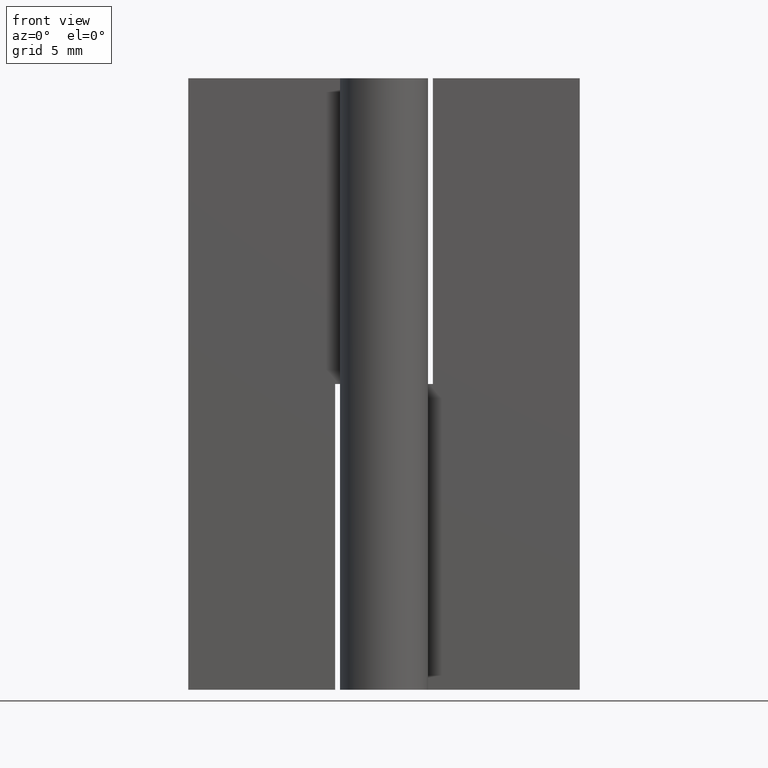
[diagram: clean part render]
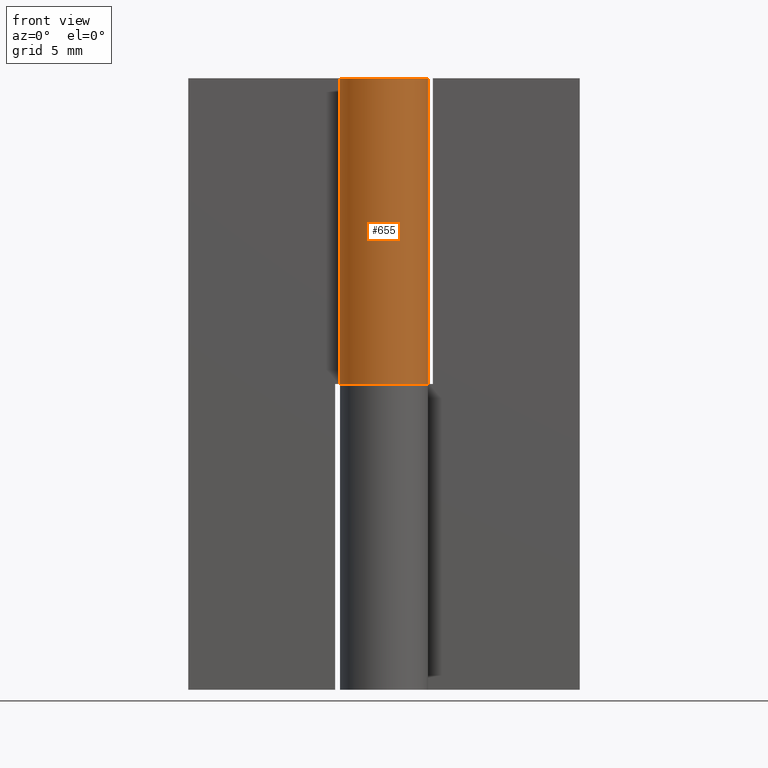
[diagram: same view with one face highlighted and labeled with its STEP entity id]
A machine part, front view. The second image highlights one B-rep face of the part: STEP entity #655.
In plain terms, the highlighted face is a freeform B-spline surface patch.
Its self-contained STEP definition (entity closure, byte-faithful):
#355=CARTESIAN_POINT('',(-3.026136150274800,1.950000000000000,25.0));
#356=VERTEX_POINT('',#355);
#357=CARTESIAN_POINT('',(0.0,3.599998000000000,25.0));
#358=VERTEX_POINT('',#357);
#359=CARTESIAN_POINT('',(-3.026136150274800,1.950000000000000,25.0));
#360=CARTESIAN_POINT('',(-4.541419292909124,-0.401512982956539,25.0));
#361=CARTESIAN_POINT('',(-2.637063597806918,-2.450691853562211,25.0));
#362=CARTESIAN_POINT('',(-0.732707902704714,-4.499870724167883,25.0));
#363=CARTESIAN_POINT('',(1.723368793961409,-3.160697125855822,25.0));
#364=CARTESIAN_POINT('',(4.179445490627529,-1.821523527543764,25.0));
#365=CARTESIAN_POINT('',(3.488445646206986,0.889236523647995,25.0));
#366=CARTESIAN_POINT('',(2.797445801786441,3.599996574839755,25.0));
#367=CARTESIAN_POINT('',(0.0,3.599998000000000,25.0));
#375=(BOUNDED_CURVE()B_SPLINE_CURVE(2,(#359,#360,#361,#362,#363,#364,#365,#366,#367),.UNSPECIFIED.,.F.,.U.)B_SPLINE_CURVE_WITH_KNOTS((3,2,2,2,3),(0.0,0.250000000000000,0.500000000000000,0.750000000000000,1.0),.UNSPECIFIED.)CURVE()GEOMETRIC_REPRESENTATION_ITEM()RATIONAL_B_SPLINE_CURVE((1.0,0.789623639943024,1.0,0.789623639943024,1.0,0.789623639943024,1.0,0.789623639943024,1.0))REPRESENTATION_ITEM(''));
#376=EDGE_CURVE('',#356,#358,#375,.T.);
#412=CARTESIAN_POINT('',(-0.003794732665986,3.599998000000000,25.0));
#413=VERTEX_POINT('',#412);
#419=CARTESIAN_POINT('',(0.0,3.599998000000000,25.0));
#420=CARTESIAN_POINT('',(-0.003794732665986,3.599998000000000,25.0));
#421=QUASI_UNIFORM_CURVE('',1,(#419,#420),.UNSPECIFIED.,.F.,.U.);
#422=EDGE_CURVE('',#358,#413,#421,.T.);
#434=CARTESIAN_POINT('',(-3.026136150274800,1.950000000000000,49.999992000000098));
#435=VERTEX_POINT('',#434);
#441=CARTESIAN_POINT('',(-0.003794732665986,3.599998000000000,49.999992000000098));
#442=VERTEX_POINT('',#441);
#443=CARTESIAN_POINT('',(-0.003794732665987,3.599997999999999,49.999992000000098));
#444=CARTESIAN_POINT('',(2.794410358292481,3.602947568378868,49.999992000000084));
#445=CARTESIAN_POINT('',(3.487741550519031,0.891997128237030,49.999992000000098));
#446=CARTESIAN_POINT('',(4.181072742745579,-1.818953311904811,49.999992000000084));
#447=CARTESIAN_POINT('',(1.725034387729875,-3.159787391763790,49.999992000000098));
#448=CARTESIAN_POINT('',(-0.731003967285830,-4.500621471622769,49.999992000000084));
#449=CARTESIAN_POINT('',(-2.636417691941365,-2.451387719969765,49.999992000000098));
#450=CARTESIAN_POINT('',(-4.541831416596899,-0.402153968316764,49.999992000000084));
#451=CARTESIAN_POINT('',(-3.026136150274803,1.949999999999999,49.999992000000098));
#459=(BOUNDED_CURVE()B_SPLINE_CURVE(2,(#443,#444,#445,#446,#447,#448,#449,#450,#451),.UNSPECIFIED.,.F.,.U.)B_SPLINE_CURVE_WITH_KNOTS((3,2,2,2,3),(0.0,0.250000000000000,0.500000000000000,0.750000000000000,1.0),.UNSPECIFIED.)CURVE()GEOMETRIC_REPRESENTATION_ITEM()RATIONAL_B_SPLINE_CURVE((1.0,0.789542785308575,1.0,0.789542785308575,1.0,0.789542785308575,1.0,0.789542785308575,1.0))REPRESENTATION_ITEM(''));
#460=EDGE_CURVE('',#442,#435,#459,.T.);
#614=CARTESIAN_POINT('',(-0.003794732665986,3.599998000000000,25.0));
#615=CARTESIAN_POINT('',(-0.003794732665986,3.599998000000000,49.999992000000098));
#616=QUASI_UNIFORM_CURVE('',1,(#614,#615),.UNSPECIFIED.,.F.,.U.);
#617=EDGE_CURVE('',#413,#442,#616,.T.);
#622=CARTESIAN_POINT('',(-0.106976321486419,3.598410213780695,24.375000199999992));
#623=CARTESIAN_POINT('',(-0.106976321486419,3.598410213780695,50.640616795000099));
#624=CARTESIAN_POINT('',(4.416845319425706,3.732897881793668,24.375000199999995));
#625=CARTESIAN_POINT('',(4.416845319425706,3.732897881793668,50.640616795000099));
#626=CARTESIAN_POINT('',(3.530247629433545,-0.705231646254493,24.375000199999992));
#627=CARTESIAN_POINT('',(3.530247629433545,-0.705231646254493,50.640616795000099));
#628=CARTESIAN_POINT('',(2.643649939441384,-5.143361174302655,24.375000199999995));
#629=CARTESIAN_POINT('',(2.643649939441384,-5.143361174302655,50.640616795000099));
#630=CARTESIAN_POINT('',(-1.481289531185596,-3.281125009017479,24.375000199999992));
#631=CARTESIAN_POINT('',(-1.481289531185596,-3.281125009017479,50.640616795000099));
#632=CARTESIAN_POINT('',(-5.606229001812576,-1.418888843732302,24.375000199999995));
#633=CARTESIAN_POINT('',(-5.606229001812576,-1.418888843732302,50.640616795000099));
#634=CARTESIAN_POINT('',(-2.863812345776086,2.181416706679507,24.375000199999992));
#635=CARTESIAN_POINT('',(-2.863812345776086,2.181416706679507,50.640616795000099));
#643=(BOUNDED_SURFACE()B_SPLINE_SURFACE(1,2,((#622,#624,#626,#628,#630,#632,#634),(#623,#625,#627,#629,#631,#633,#635)),.UNSPECIFIED.,.F.,.F.,.U.)B_SPLINE_SURFACE_WITH_KNOTS((2,2),(3,2,2,3),(0.0,26.265616595000111),(0.0,6.945735467773014,13.891470935546030,20.837206403319041),.UNSPECIFIED.)GEOMETRIC_REPRESENTATION_ITEM()RATIONAL_B_SPLINE_SURFACE(((1.0,0.622514636637620,1.0,0.622514636637620,1.0,0.622514636637620,1.0),(1.0,0.622514636637620,1.0,0.622514636637620,1.0,0.622514636637620,1.0)))REPRESENTATION_ITEM('')SURFACE());
#644=ORIENTED_EDGE('',*,*,#376,.T.);
#645=ORIENTED_EDGE('',*,*,#422,.T.);
#646=ORIENTED_EDGE('',*,*,#617,.T.);
#647=ORIENTED_EDGE('',*,*,#460,.T.);
#648=CARTESIAN_POINT('',(-3.026136150274800,1.950000000000000,25.0));
#649=CARTESIAN_POINT('',(-3.026136150274800,1.950000000000000,49.999992000000098));
#650=QUASI_UNIFORM_CURVE('',1,(#648,#649),.UNSPECIFIED.,.F.,.U.);
#651=EDGE_CURVE('',#356,#435,#650,.T.);
#652=ORIENTED_EDGE('',*,*,#651,.F.);
#653=EDGE_LOOP('',(#644,#645,#646,#647,#652));
#654=FACE_OUTER_BOUND('',#653,.T.);
#655=ADVANCED_FACE('',(#654),#643,.T.);